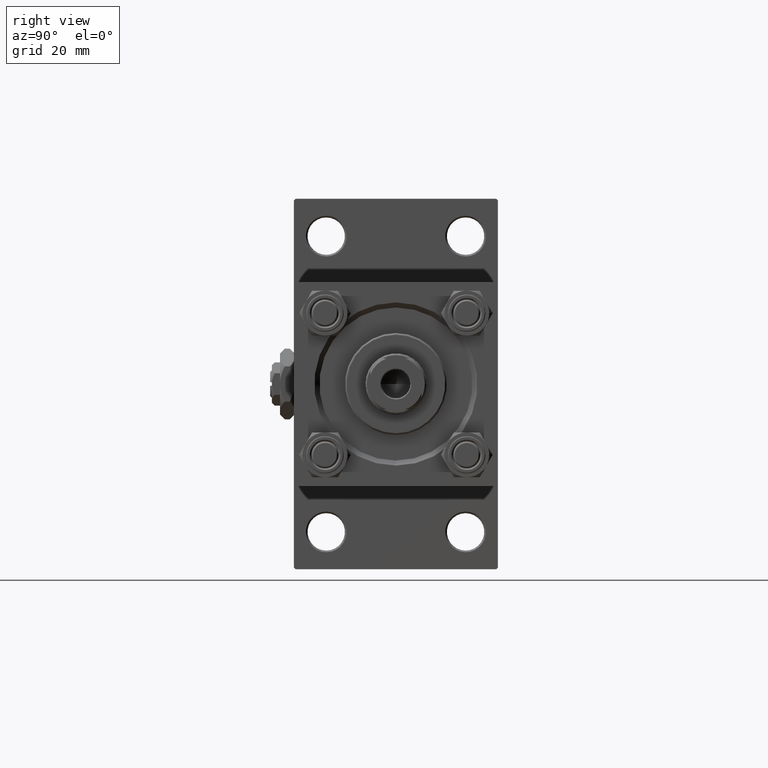
[diagram: clean part render]
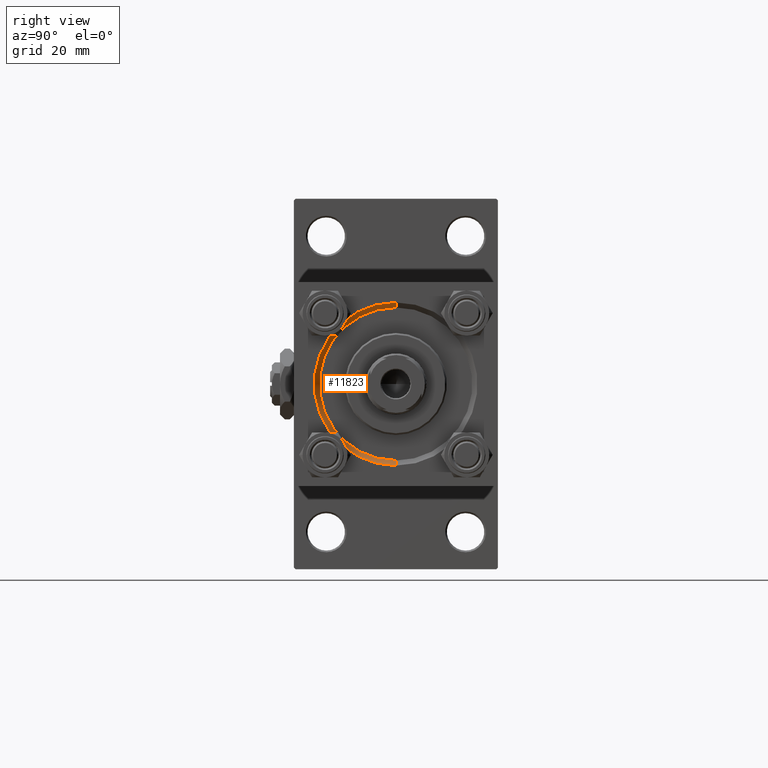
[diagram: same view with one face highlighted and labeled with its STEP entity id]
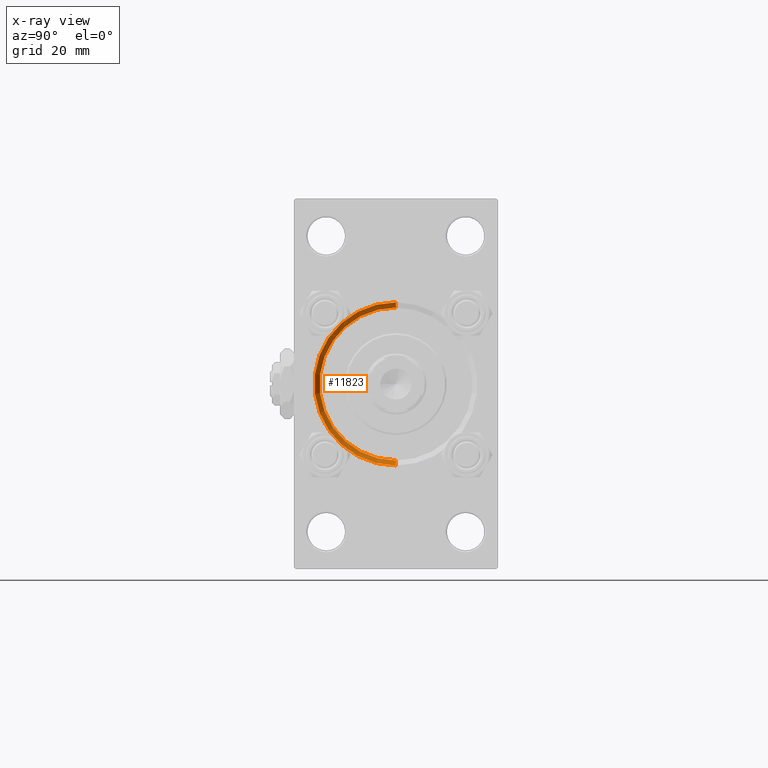
[diagram: x-ray of the same camera — body ghosted, the highlighted face saturated]
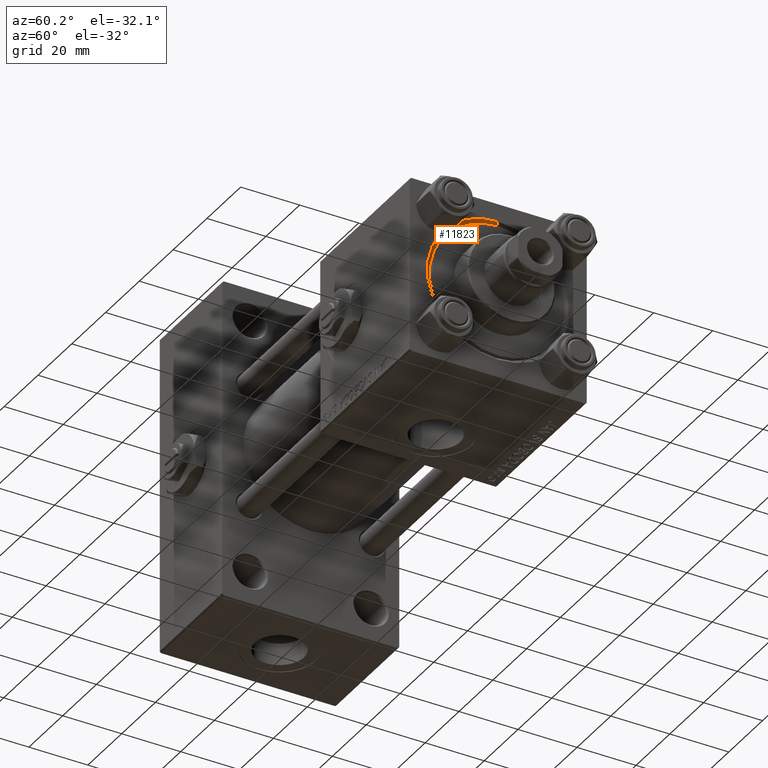
[diagram: same view with one face highlighted and labeled with its STEP entity id]
A machine part, right view. The second image highlights one B-rep face of the part: STEP entity #11823.
The next image is the same camera in x-ray: the body ghosted, the highlighted face saturated — about 0% of this face is hidden behind the body in this view.
A second angle (auxiliary view) of the same face is appended — the face is thin or edge-on in the first view.
In plain terms, the highlighted conical surface has half-angle 45 deg.
Its self-contained STEP definition (entity closure, byte-faithful):
#964 = CARTESIAN_POINT ( 'NONE',  ( 146.5000000000000284, 0.000000000000000000, -22.50000000000000355 ) ) ;
#1937 = ORIENTED_EDGE ( 'NONE', *, *, #46880, .F. ) ;
#4297 = VECTOR ( 'NONE', #40669, 1000.000000000000000 ) ;
#4445 = CONICAL_SURFACE ( 'NONE', #26325, 22.50000000000000355, 0.7853981633974460586 ) ;
#5493 = EDGE_CURVE ( 'NONE', #21680, #15582, #40409, .T. ) ;
#5536 = ORIENTED_EDGE ( 'NONE', *, *, #5493, .T. ) ;
#7548 = ORIENTED_EDGE ( 'NONE', *, *, #16544, .F. ) ;
#8898 = VERTEX_POINT ( 'NONE', #44296 ) ;
#10509 = CIRCLE ( 'NONE', #38240, 23.99999999999996803 ) ;
#11195 = CIRCLE ( 'NONE', #23790, 22.50000000000000355 ) ;
#11823 = ADVANCED_FACE ( 'NONE', ( #37818 ), #4445, .F. ) ;
#15582 = VERTEX_POINT ( 'NONE', #34193 ) ;
#16073 = CARTESIAN_POINT ( 'NONE',  ( 148.0000000000000000, 0.000000000000000000, 0.000000000000000000 ) ) ;
#16544 = EDGE_CURVE ( 'NONE', #8898, #15582, #10509, .T. ) ;
#21224 = VERTEX_POINT ( 'NONE', #25346 ) ;
#21247 = DIRECTION ( 'NONE',  ( 0.7071067811865491270, 0.000000000000000000, -0.7071067811865459074 ) ) ;
#21680 = VERTEX_POINT ( 'NONE', #38945 ) ;
#22080 = DIRECTION ( 'NONE',  ( 0.000000000000000000, 0.000000000000000000, 1.000000000000000000 ) ) ;
#23790 = AXIS2_PLACEMENT_3D ( 'NONE', #46527, #46790, #22080 ) ;
#24505 = DIRECTION ( 'NONE',  ( -1.000000000000000000, 0.000000000000000000, -0.000000000000000000 ) ) ;
#25346 = CARTESIAN_POINT ( 'NONE',  ( 146.5000000000000284, 0.000000000000000000, -22.50000000000000355 ) ) ;
#26325 = AXIS2_PLACEMENT_3D ( 'NONE', #41502, #44938, #37301 ) ;
#32658 = ORIENTED_EDGE ( 'NONE', *, *, #50363, .F. ) ;
#33021 = CARTESIAN_POINT ( 'NONE',  ( 146.5000000000000284, 2.755455298081545172E-15, 22.50000000000000355 ) ) ;
#34193 = CARTESIAN_POINT ( 'NONE',  ( 148.0000000000000000, 2.939152317953644345E-15, 23.99999999999996803 ) ) ;
#36288 = VECTOR ( 'NONE', #21247, 1000.000000000000000 ) ;
#37301 = DIRECTION ( 'NONE',  ( 0.000000000000000000, 0.000000000000000000, -1.000000000000000000 ) ) ;
#37818 = FACE_OUTER_BOUND ( 'NONE', #39236, .T. ) ;
#38240 = AXIS2_PLACEMENT_3D ( 'NONE', #16073, #24505, #40291 ) ;
#38945 = CARTESIAN_POINT ( 'NONE',  ( 146.5000000000000284, 2.755455298081545172E-15, 22.50000000000000355 ) ) ;
#39236 = EDGE_LOOP ( 'NONE', ( #32658, #5536, #7548, #1937 ) ) ;
#40291 = DIRECTION ( 'NONE',  ( 0.000000000000000000, 0.000000000000000000, 1.000000000000000000 ) ) ;
#40409 = LINE ( 'NONE', #33021, #4297 ) ;
#40669 = DIRECTION ( 'NONE',  ( 0.7071067811865491270, 8.659560562354913137E-17, 0.7071067811865459074 ) ) ;
#41502 = CARTESIAN_POINT ( 'NONE',  ( 146.5000000000000284, 0.000000000000000000, 0.000000000000000000 ) ) ;
#44296 = CARTESIAN_POINT ( 'NONE',  ( 148.0000000000000000, 0.000000000000000000, -23.99999999999996803 ) ) ;
#44938 = DIRECTION ( 'NONE',  ( 1.000000000000000000, 0.000000000000000000, 0.000000000000000000 ) ) ;
#46527 = CARTESIAN_POINT ( 'NONE',  ( 146.5000000000000284, 0.000000000000000000, 0.000000000000000000 ) ) ;
#46790 = DIRECTION ( 'NONE',  ( 1.000000000000000000, 0.000000000000000000, 0.000000000000000000 ) ) ;
#46880 = EDGE_CURVE ( 'NONE', #21224, #8898, #49145, .T. ) ;
#49145 = LINE ( 'NONE', #964, #36288 ) ;
#50363 = EDGE_CURVE ( 'NONE', #21680, #21224, #11195, .T. ) ;